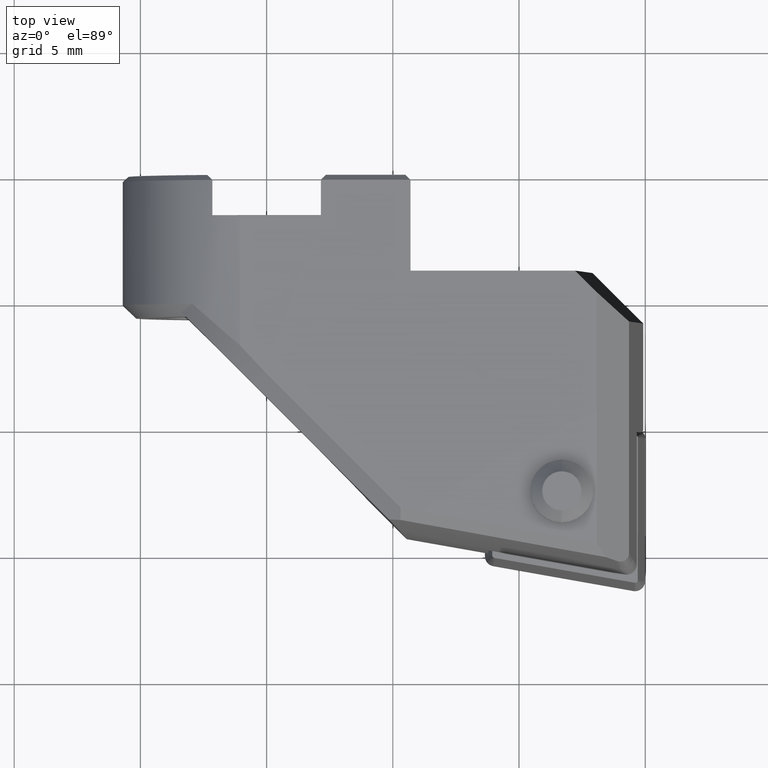
[diagram: clean part render]
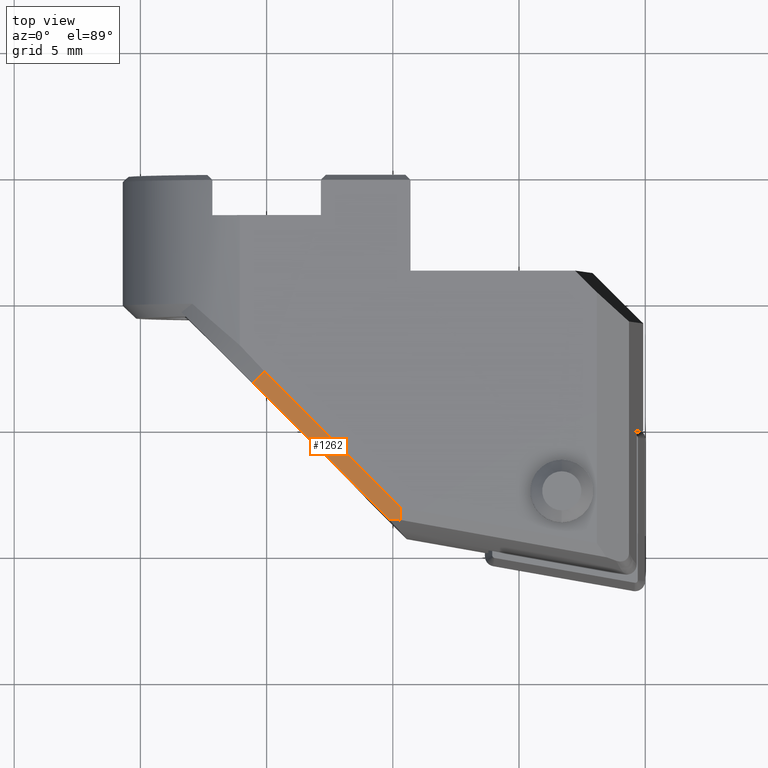
[diagram: same view with one face highlighted and labeled with its STEP entity id]
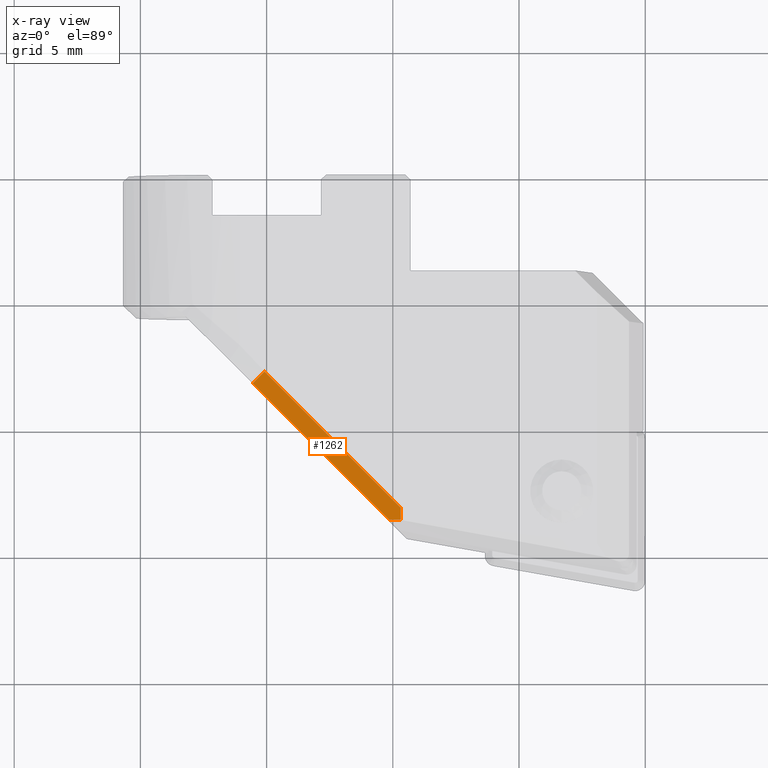
[diagram: x-ray of the same camera — body ghosted, the highlighted face saturated]
A machine part, top view. The second image highlights one B-rep face of the part: STEP entity #1262.
The next image is the same camera in x-ray: the body ghosted, the highlighted face saturated — about 0% of this face is hidden behind the body in this view.
In plain terms, the highlighted planar face has unit normal (0.4558, 0.4558, -0.7645).
Its self-contained STEP definition (entity closure, byte-faithful):
#658=VERTEX_POINT('NONE',#1803);
#698=VERTEX_POINT('NONE',#1846);
#764=VERTEX_POINT('NONE',#1917);
#818=EDGE_CURVE('NONE',#890,#944,#1972,.F.);
#830=EDGE_CURVE('NONE',#698,#890,#1988,.F.);
#890=VERTEX_POINT('NONE',#2056);
#944=VERTEX_POINT('NONE',#2118);
#1038=EDGE_CURVE('NONE',#764,#658,#2223,.F.);
#1262=ADVANCED_FACE('NONE',(#2470),#2471,.F.);
#1368=EDGE_CURVE('NONE',#658,#944,#2591,.T.);
#1372=EDGE_CURVE('NONE',#698,#764,#2595,.F.);
#1803=CARTESIAN_POINT('',(-0.0838519367130209,-7.79566433344378,5.6));
#1846=CARTESIAN_POINT('',(5.30483348837496,-13.6750876793138,5.30737830274481));
#1917=CARTESIAN_POINT('',(5.31146016561699,-13.1909764357739,5.6));
#1972=LINE('',#3339,#3340);
#1988=ELLIPSE('',#3370,42.911373078917,18.3650320950065);
#2056=CARTESIAN_POINT('',(4.85349083969277,-13.6534908396929,5.05112553989447));
#2118=CARTESIAN_POINT('',(-0.544093801634637,-8.25590619836539,5.05112553989448));
#2223=LINE('',#4154,#4155);
#2470=FACE_OUTER_BOUND('',#4519,.T.);
#2471=PLANE('',#4520);
#2591=B_SPLINE_CURVE_WITH_KNOTS('',1,(#4697,#4698),.UNSPECIFIED.,.F.,.F.,(2,2),(0.154113015919501,0.999999999999998),.UNSPECIFIED.);
#2595=B_SPLINE_CURVE_WITH_KNOTS('',3,(#4704,#4705,#4706,#4707,#4708,#4709),.UNSPECIFIED.,.F.,.F.,(4,2,4),(-0.747567712295285,-0.373744798040625,-0.0),.UNSPECIFIED.);
#3339=CARTESIAN_POINT('',(-3.2,-5.6,5.05112553989448));
#3340=VECTOR('',#5488,1.0);
#3370=AXIS2_PLACEMENT_3D('',#5526,#5527,#5528);
#4154=CARTESIAN_POINT('',(5.2602418647838,-13.1397581349407,5.6));
#4155=VECTOR('',#5831,1.0);
#4519=EDGE_LOOP('',(#6153,#6154,#6155,#6156,#6157));
#4520=AXIS2_PLACEMENT_3D('',#6158,#6159,#6160);
#4697=CARTESIAN_POINT('',(-0.0838519367130205,-7.79566433344378,5.6));
#4698=CARTESIAN_POINT('',(-0.544093801634636,-8.25590619836539,5.05112553989448));
#4704=CARTESIAN_POINT('',(5.31249025095329,-13.113167545318,5.64701082579759));
#4705=CARTESIAN_POINT('',(5.31108451505871,-13.2198556991849,5.58255561223981));
#4706=CARTESIAN_POINT('',(5.30965254908923,-13.3264497621786,5.51814086333965));
#4707=CARTESIAN_POINT('',(5.30673346240585,-13.5396931615225,5.38924551846104));
#4708=CARTESIAN_POINT('',(5.3052469671764,-13.6462976356155,5.32479204632934));
#4709=CARTESIAN_POINT('',(5.30373373328372,-13.7528933725537,5.2603278400935));
#5488=DIRECTION('',(0.707106781186544,-0.707106781186551,7.26140496945852E-017));
#5526=CARTESIAN_POINT('',(-12.5213242480244,4.95088507889723,5.78429932160496));
#5527=DIRECTION('',(-0.455844251589159,-0.455844251589155,0.764468466704967));
#5528=DIRECTION('',(0.89005955884599,-0.23346076073414,0.391522738681059));
#5831=DIRECTION('',(0.707106781186544,-0.707106781186551,-8.65956056235489E-017));
#6153=ORIENTED_EDGE('',*,*,#830,.F.);
#6154=ORIENTED_EDGE('',*,*,#1372,.T.);
#6155=ORIENTED_EDGE('',*,*,#1038,.T.);
#6156=ORIENTED_EDGE('',*,*,#1368,.T.);
#6157=ORIENTED_EDGE('',*,*,#818,.F.);
#6158=CARTESIAN_POINT('',(-3.2,-5.6,5.05112553989448));
#6159=DIRECTION('',(0.455844251589159,0.455844251589155,-0.764468466704967));
#6160=DIRECTION('',(-0.858895856021297,-2.53044391878651E-017,-0.512150279224218));